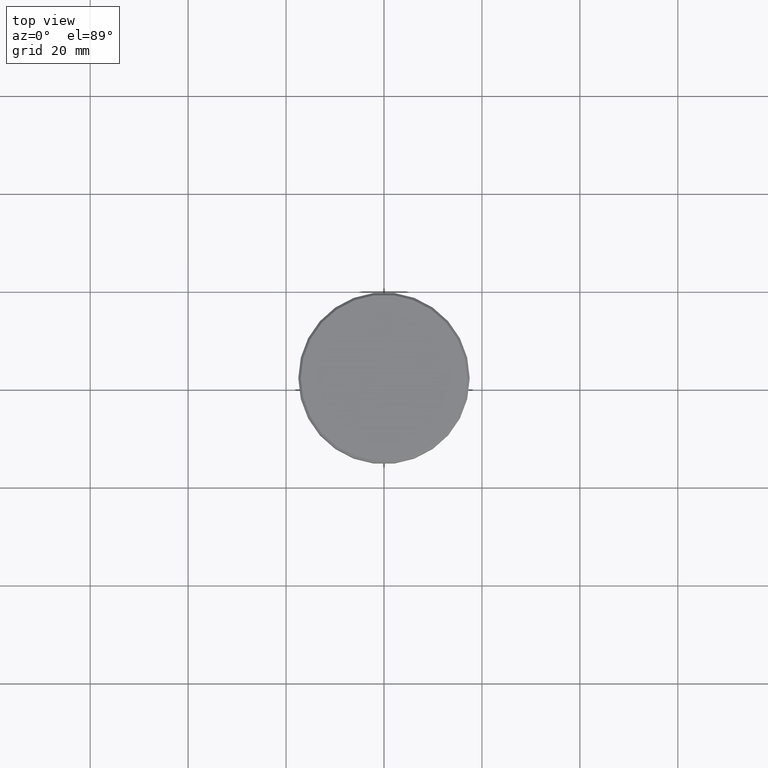
[diagram: clean part render]
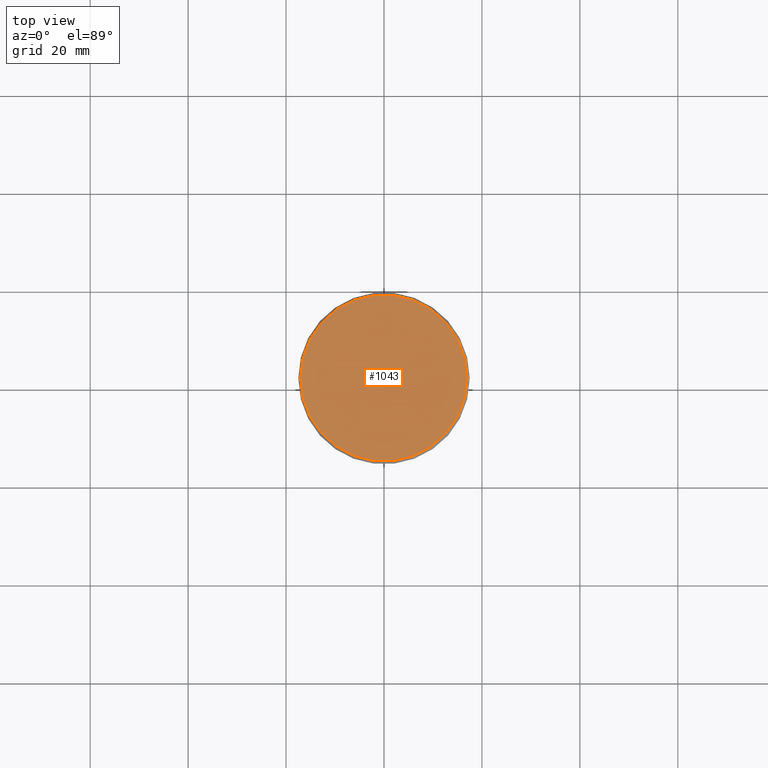
[diagram: same view with one face highlighted and labeled with its STEP entity id]
A machine part, top view. The second image highlights one B-rep face of the part: STEP entity #1043.
In plain terms, the highlighted planar face has unit normal (0, -0, 1).
Its self-contained STEP definition (entity closure, byte-faithful):
#34 = DIRECTION ( 'NONE',  ( 1.000000000000000000, 0.000000000000000000, 0.000000000000000000 ) ) ;
#85 = VERTEX_POINT ( 'NONE', #888 ) ;
#117 = DIRECTION ( 'NONE',  ( -0.000000000000000000, -0.000000000000000000, 1.000000000000000000 ) ) ;
#136 = ORIENTED_EDGE ( 'NONE', *, *, #945, .T. ) ;
#147 = PLANE ( 'NONE',  #504 ) ;
#224 = CIRCLE ( 'NONE', #975, 16.99999999999998579 ) ;
#278 = AXIS2_PLACEMENT_3D ( 'NONE', #690, #594, #1054 ) ;
#317 = CIRCLE ( 'NONE', #278, 16.99999999999998579 ) ;
#483 = DIRECTION ( 'NONE',  ( 1.000000000000000000, 0.000000000000000000, 0.000000000000000000 ) ) ;
#504 = AXIS2_PLACEMENT_3D ( 'NONE', #1038, #783, #34 ) ;
#565 = CARTESIAN_POINT ( 'NONE',  ( 0.000000000000000000, 0.000000000000000000, 0.000000000000000000 ) ) ;
#594 = DIRECTION ( 'NONE',  ( -0.000000000000000000, -0.000000000000000000, 1.000000000000000000 ) ) ;
#598 = CARTESIAN_POINT ( 'NONE',  ( 16.99999999999998579, 2.112515728529183278E-15, 0.000000000000000000 ) ) ;
#606 = EDGE_CURVE ( 'NONE', #677, #85, #317, .T. ) ;
#677 = VERTEX_POINT ( 'NONE', #598 ) ;
#690 = CARTESIAN_POINT ( 'NONE',  ( 0.000000000000000000, 0.000000000000000000, 0.000000000000000000 ) ) ;
#783 = DIRECTION ( 'NONE',  ( 0.000000000000000000, -0.000000000000000000, 1.000000000000000000 ) ) ;
#888 = CARTESIAN_POINT ( 'NONE',  ( -16.99999999999998579, 0.000000000000000000, 0.000000000000000000 ) ) ;
#945 = EDGE_CURVE ( 'NONE', #85, #677, #224, .T. ) ;
#975 = AXIS2_PLACEMENT_3D ( 'NONE', #565, #117, #483 ) ;
#1038 = CARTESIAN_POINT ( 'NONE',  ( 0.000000000000000000, 0.000000000000000000, 0.000000000000000000 ) ) ;
#1043 = ADVANCED_FACE ( 'NONE', ( #1130 ), #147, .T. ) ;
#1054 = DIRECTION ( 'NONE',  ( 1.000000000000000000, 0.000000000000000000, 0.000000000000000000 ) ) ;
#1059 = ORIENTED_EDGE ( 'NONE', *, *, #606, .T. ) ;
#1079 = EDGE_LOOP ( 'NONE', ( #136, #1059 ) ) ;
#1130 = FACE_OUTER_BOUND ( 'NONE', #1079, .T. ) ;